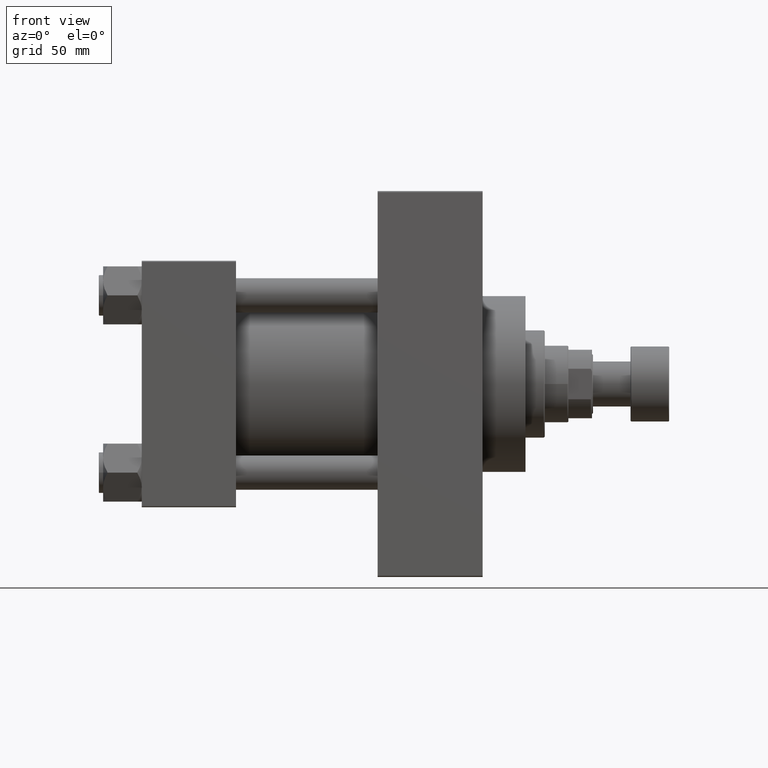
[diagram: clean part render]
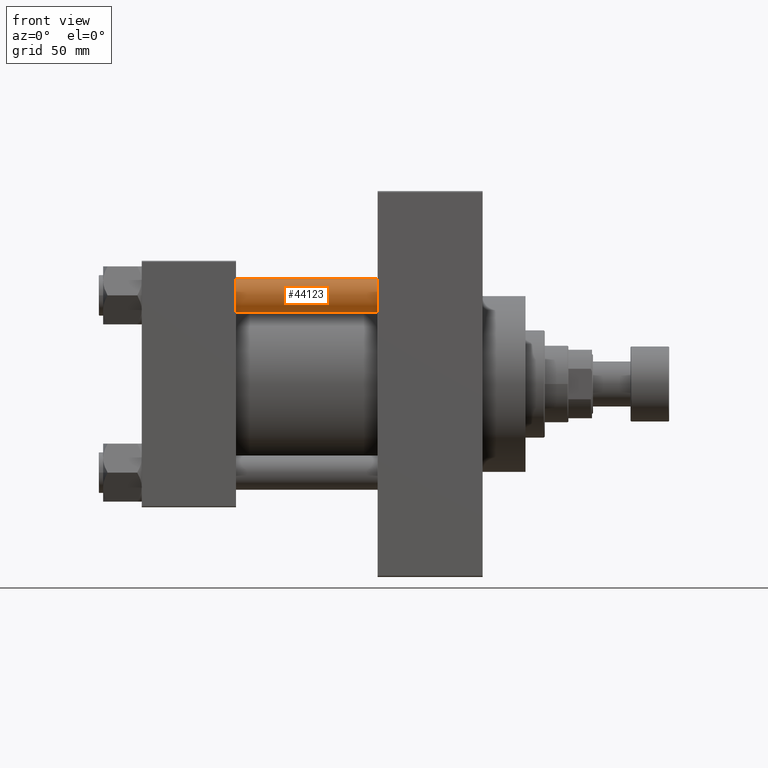
[diagram: same view with one face highlighted and labeled with its STEP entity id]
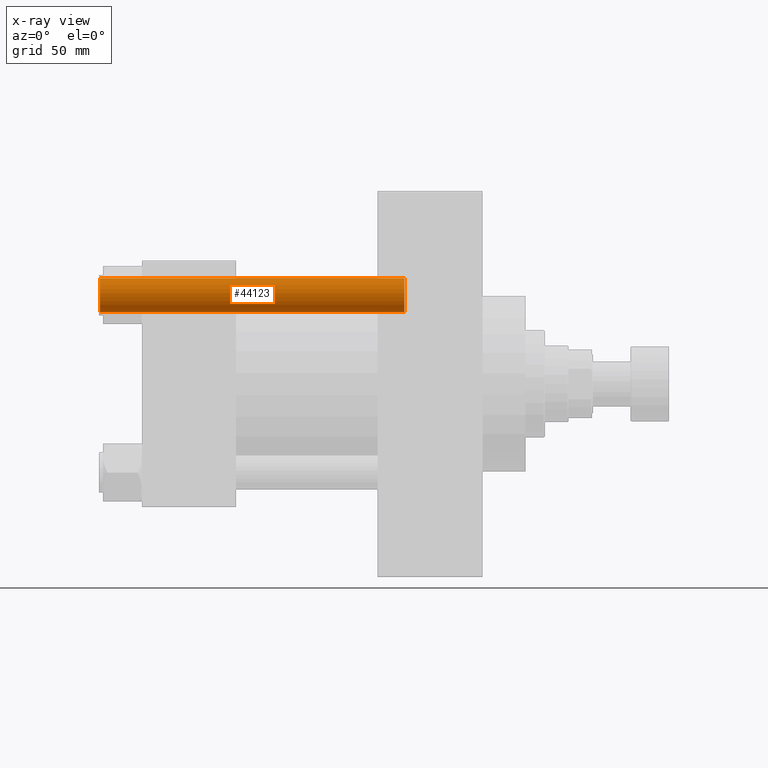
[diagram: x-ray of the same camera — body ghosted, the highlighted face saturated]
A machine part, front view. The second image highlights one B-rep face of the part: STEP entity #44123.
The next image is the same camera in x-ray: the body ghosted, the highlighted face saturated — about 0% of this face is hidden behind the body in this view.
In plain terms, the highlighted cylindrical surface (edge-blend (fillet) strip) has radius 8 mm, axis along (1, 0, 0).
Its self-contained STEP definition (entity closure, byte-faithful):
#87 = VECTOR ( 'NONE', #44814, 1000.000000000000000 ) ;
#436 = CARTESIAN_POINT ( 'NONE',  ( 0.000000000000000000, 0.000000000000000000, 143.0000000000000000 ) ) ;
#3239 = EDGE_CURVE ( 'NONE', #25023, #17365, #28456, .T. ) ;
#3929 = LINE ( 'NONE', #30203, #87 ) ;
#3938 = CARTESIAN_POINT ( 'NONE',  ( 0.000000000000000000, 0.000000000000000000, 142.4999999999999716 ) ) ;
#4147 = DIRECTION ( 'NONE',  ( -0.000000000000000000, -0.000000000000000000, 1.000000000000000000 ) ) ;
#8186 = VERTEX_POINT ( 'NONE', #33546 ) ;
#8309 = DIRECTION ( 'NONE',  ( 0.000000000000000000, 0.000000000000000000, -1.000000000000000000 ) ) ;
#8753 = CARTESIAN_POINT ( 'NONE',  ( 8.000000000000000000, 9.797174393178825657E-16, 142.4999999999999716 ) ) ;
#10830 = EDGE_LOOP ( 'NONE', ( #15615, #24493, #40763, #28437 ) ) ;
#11152 = FACE_OUTER_BOUND ( 'NONE', #10830, .T. ) ;
#14793 = DIRECTION ( 'NONE',  ( -1.000000000000000000, 0.000000000000000000, 0.000000000000000000 ) ) ;
#15281 = DIRECTION ( 'NONE',  ( -0.000000000000000000, -0.000000000000000000, -1.000000000000000000 ) ) ;
#15615 = ORIENTED_EDGE ( 'NONE', *, *, #17035, .T. ) ;
#17035 = EDGE_CURVE ( 'NONE', #41482, #25023, #40547, .T. ) ;
#17365 = VERTEX_POINT ( 'NONE', #41116 ) ;
#19565 = AXIS2_PLACEMENT_3D ( 'NONE', #3938, #8309, #37996 ) ;
#24493 = ORIENTED_EDGE ( 'NONE', *, *, #3239, .T. ) ;
#25023 = VERTEX_POINT ( 'NONE', #8753 ) ;
#25296 = CARTESIAN_POINT ( 'NONE',  ( 8.000000000000000000, 9.797174393178825657E-16, 143.0000000000000000 ) ) ;
#26715 = CYLINDRICAL_SURFACE ( 'NONE', #38957, 8.000000000000000000 ) ;
#27013 = DIRECTION ( 'NONE',  ( 1.000000000000000000, 0.000000000000000000, 0.000000000000000000 ) ) ;
#28437 = ORIENTED_EDGE ( 'NONE', *, *, #46627, .F. ) ;
#28456 = LINE ( 'NONE', #25296, #44099 ) ;
#30203 = CARTESIAN_POINT ( 'NONE',  ( -8.000000000000000000, 0.000000000000000000, 143.0000000000000000 ) ) ;
#30899 = CARTESIAN_POINT ( 'NONE',  ( 0.000000000000000000, 0.000000000000000000, 0.4999999999999726885 ) ) ;
#33546 = CARTESIAN_POINT ( 'NONE',  ( -8.000000000000000000, 0.000000000000000000, 0.4999999999999726885 ) ) ;
#37996 = DIRECTION ( 'NONE',  ( 1.000000000000000000, 0.000000000000000000, 0.000000000000000000 ) ) ;
#38957 = AXIS2_PLACEMENT_3D ( 'NONE', #436, #15281, #14793 ) ;
#40132 = DIRECTION ( 'NONE',  ( -0.000000000000000000, -0.000000000000000000, -1.000000000000000000 ) ) ;
#40432 = EDGE_CURVE ( 'NONE', #17365, #8186, #42748, .T. ) ;
#40547 = CIRCLE ( 'NONE', #19565, 8.000000000000000000 ) ;
#40763 = ORIENTED_EDGE ( 'NONE', *, *, #40432, .T. ) ;
#41116 = CARTESIAN_POINT ( 'NONE',  ( 8.000000000000000000, 9.797174393178825657E-16, 0.4999999999999726885 ) ) ;
#41482 = VERTEX_POINT ( 'NONE', #44285 ) ;
#42748 = CIRCLE ( 'NONE', #45083, 8.000000000000000000 ) ;
#44099 = VECTOR ( 'NONE', #40132, 1000.000000000000000 ) ;
#44123 = ADVANCED_FACE ( 'NONE', ( #11152 ), #26715, .T. ) ;
#44285 = CARTESIAN_POINT ( 'NONE',  ( -8.000000000000000000, 0.000000000000000000, 142.4999999999999716 ) ) ;
#44814 = DIRECTION ( 'NONE',  ( -0.000000000000000000, -0.000000000000000000, -1.000000000000000000 ) ) ;
#45083 = AXIS2_PLACEMENT_3D ( 'NONE', #30899, #4147, #27013 ) ;
#46627 = EDGE_CURVE ( 'NONE', #41482, #8186, #3929, .T. ) ;